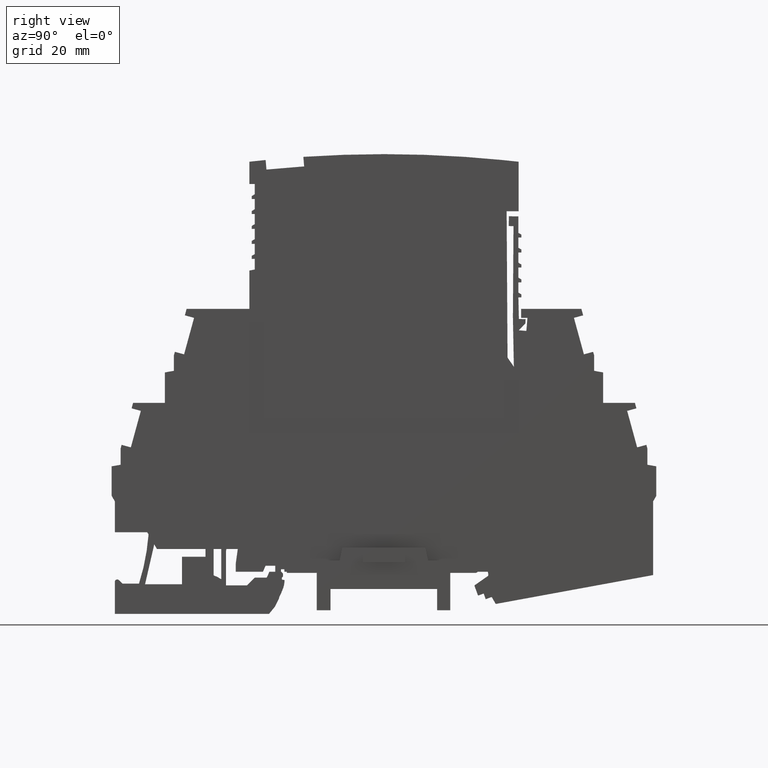
[diagram: clean part render]
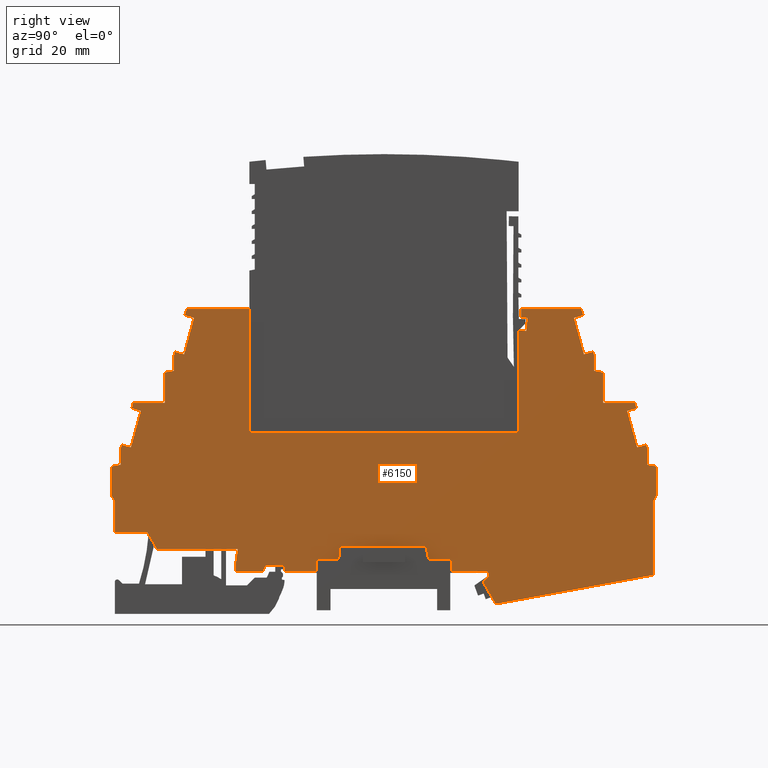
[diagram: same view with one face highlighted and labeled with its STEP entity id]
A machine part, right view. The second image highlights one B-rep face of the part: STEP entity #6150.
In plain terms, the highlighted planar face has unit normal (-1, 0, -0).
Its self-contained STEP definition (entity closure, byte-faithful):
#480=CARTESIAN_POINT('',(163.675787424711,45.2748719518251,
-0.938341446413222));
#490=DIRECTION('',(1.31820478495376E-13,-4.39608926050624E-11,-1.));
#500=DIRECTION('',(1.,5.77082812486863E-24,1.31820478495376E-13));
#510=AXIS2_PLACEMENT_3D('',#480,#490,#500);
#520=PLANE('',#510);
#530=CARTESIAN_POINT('',(140.653020451251,47.3424286058978,
-0.938341446507151));
#540=DIRECTION('',(-2.90082999581505E-26,-1.,4.39608926050624E-11));
#550=VECTOR('',#540,1.);
#560=LINE('',#530,#550);
#570=CARTESIAN_POINT('',(140.653020451246,68.302477057904,
-0.938341447428572));
#580=VERTEX_POINT('',#570);
#590=CARTESIAN_POINT('',(140.653020451246,51.1748719518589,
-0.938341446675626));
#600=VERTEX_POINT('',#590);
#610=EDGE_CURVE('',#580,#600,#560,.T.);
#620=ORIENTED_EDGE('',*,*,#610,.T.);
#630=CARTESIAN_POINT('',(150.854165360675,67.4655827229434,
-0.938341447390435));
#640=DIRECTION('',(0.996651672605884,-0.0817645613447162,
3.72582820561022E-12));
#650=VECTOR('',#640,1.);
#660=LINE('',#630,#650);
#670=CARTESIAN_POINT('',(141.954397861838,68.1957130238435,
-0.938341447423708));
#680=VERTEX_POINT('',#670);
#690=EDGE_CURVE('',#580,#680,#660,.T.);
#700=ORIENTED_EDGE('',*,*,#690,.F.);
#710=CARTESIAN_POINT('',(139.972880387126,44.0424286058733,
-0.938341443299544));
#720=DIRECTION('',(0.0817645613447245,0.996651672605883,
-4.70011343753861E-11));
#730=VECTOR('',#720,1.);
#740=LINE('',#710,#730);
#750=CARTESIAN_POINT('',(142.134058703453,70.3856505145184,
-0.938341447519955));
#760=VERTEX_POINT('',#750);
#770=EDGE_CURVE('',#680,#760,#740,.T.);
#780=ORIENTED_EDGE('',*,*,#770,.F.);
#790=CARTESIAN_POINT('',(150.854165360675,70.3856505145184,
-0.938341447518805));
#800=DIRECTION('',(-1.,-2.48441503814189E-16,-1.3182047849537E-13));
#810=VECTOR('',#800,1.);
#820=LINE('',#790,#810);
#830=CARTESIAN_POINT('',(141.074778119476,70.3856505145184,
-0.938341447520092));
#840=VERTEX_POINT('',#830);
#850=EDGE_CURVE('',#760,#840,#820,.T.);
#860=ORIENTED_EDGE('',*,*,#850,.F.);
#870=CARTESIAN_POINT('',(141.074778119476,44.0424286058733,
-0.938341443347982));
#880=DIRECTION('',(1.79793434665674E-23,1.,-4.35524965984235E-11));
#890=VECTOR('',#880,1.);
#900=LINE('',#870,#890);
#910=CARTESIAN_POINT('',(141.074778119476,71.8738971800403,
-0.938341447585517));
#920=VERTEX_POINT('',#910);
#930=EDGE_CURVE('',#840,#920,#900,.T.);
#940=ORIENTED_EDGE('',*,*,#930,.F.);
#950=CARTESIAN_POINT('',(150.854165360675,71.8738971800403,
-0.93834144758423));
#960=DIRECTION('',(1.,4.27677063874898E-23,1.31820478495383E-13));
#970=VECTOR('',#960,1.);
#980=LINE('',#950,#970);
#990=CARTESIAN_POINT('',(151.153287379428,71.8738971800403,
-0.93834144758419));
#1000=VERTEX_POINT('',#990);
#1010=EDGE_CURVE('',#920,#1000,#980,.T.);
#1020=ORIENTED_EDGE('',*,*,#1010,.F.);
#1030=CARTESIAN_POINT('',(158.767115604835,44.0424286058733,
-0.938341446381106));
#1040=DIRECTION('',(-0.263873049965359,0.964557418457802,
-4.22984758669483E-11));
#1050=VECTOR('',#1040,1.);
#1060=LINE('',#1030,#1050);
#1070=CARTESIAN_POINT('',(151.446544502388,70.801929680881,
-0.938341447537027));
#1080=VERTEX_POINT('',#1070);
#1090=EDGE_CURVE('',#1080,#1000,#1060,.T.);
#1100=ORIENTED_EDGE('',*,*,#1090,.T.);
#1110=CARTESIAN_POINT('',(85.4518755928881,52.747831258784,
-0.938341446734807));
#1120=DIRECTION('',(0.964557418457813,0.26387304996532,
-1.19815583951361E-11));
#1130=VECTOR('',#1120,1.);
#1140=LINE('',#1110,#1130);
#1150=CARTESIAN_POINT('',(149.903252632856,70.3797328009367,
-0.938341447518669));
#1160=VERTEX_POINT('',#1150);
#1170=EDGE_CURVE('',#1160,#1080,#1140,.T.);
#1180=ORIENTED_EDGE('',*,*,#1170,.T.);
#1190=CARTESIAN_POINT('',(157.108323738862,44.0424286058733,
-0.938341446380448));
#1200=DIRECTION('',(-0.263873049965258,0.96455741845783,
-4.22984481113694E-11));
#1210=VECTOR('',#1200,1.);
#1220=LINE('',#1190,#1210);
#1230=CARTESIAN_POINT('',(151.572249673886,64.2789071291908,
-0.938341447250252));
#1240=VERTEX_POINT('',#1230);
#1250=EDGE_CURVE('',#1240,#1160,#1220,.T.);
#1260=ORIENTED_EDGE('',*,*,#1250,.T.);
#1270=CARTESIAN_POINT('',(85.4518755928881,46.1904196636059,
-0.938341446446538));
#1280=DIRECTION('',(-0.964557418457773,-0.263873049965463,
1.19815861507196E-11));
#1290=VECTOR('',#1280,1.);
#1300=LINE('',#1270,#1290);
#1310=CARTESIAN_POINT('',(153.115541543419,64.7011040091355,
-0.938341447268609));
#1320=VERTEX_POINT('',#1310);
#1330=EDGE_CURVE('',#1320,#1240,#1300,.T.);
#1340=ORIENTED_EDGE('',*,*,#1330,.T.);
#1350=CARTESIAN_POINT('',(158.767115604837,44.0424286058733,
-0.938341446381106));
#1360=DIRECTION('',(0.263873049965441,-0.964557418457779,
4.22984758669509E-11));
#1370=VECTOR('',#1360,1.);
#1380=LINE('',#1350,#1370);
#1390=CARTESIAN_POINT('',(153.275787895218,64.1153420018783,
-0.938341447242838));
#1400=VERTEX_POINT('',#1390);
#1410=EDGE_CURVE('',#1320,#1400,#1380,.T.);
#1420=ORIENTED_EDGE('',*,*,#1410,.F.);
#1430=CARTESIAN_POINT('',(153.275787895218,44.0424286058733,
-0.938341446378933));
#1440=DIRECTION('',(2.57518821413981E-26,1.,-4.39608926050624E-11));
#1450=VECTOR('',#1440,1.);
#1460=LINE('',#1430,#1450);
#1470=CARTESIAN_POINT('',(153.275787895218,61.5248719518296,
-0.938341447128959));
#1480=VERTEX_POINT('',#1470);
#1490=EDGE_CURVE('',#1480,#1400,#1460,.T.);
#1500=ORIENTED_EDGE('',*,*,#1490,.T.);
#1510=CARTESIAN_POINT('',(76.5518755928633,75.053367756245,
-0.938341447714206));
#1520=DIRECTION('',(0.984807753012208,-0.173648177666932,
7.24429425231026E-12));
#1530=VECTOR('',#1520,1.);
#1540=LINE('',#1510,#1530);
#1550=CARTESIAN_POINT('',(154.775787895097,61.2603814807883,
-0.938341447117132));
#1560=VERTEX_POINT('',#1550);
#1570=EDGE_CURVE('',#1480,#1560,#1540,.T.);
#1580=ORIENTED_EDGE('',*,*,#1570,.F.);
#1590=CARTESIAN_POINT('',(154.775787895097,59.7424286058654,
-0.938341447072059));
#1600=DIRECTION('',(-1.20204594567042E-15,-1.,4.39608926050624E-11));
#1610=VECTOR('',#1600,1.);
#1620=LINE('',#1590,#1610);
#1630=CARTESIAN_POINT('',(154.775787895097,56.1748719518101,
-0.938341446893569));
#1640=VERTEX_POINT('',#1630);
#1650=EDGE_CURVE('',#1560,#1640,#1620,.T.);
#1660=ORIENTED_EDGE('',*,*,#1650,.F.);
#1670=CARTESIAN_POINT('',(85.4518755928881,56.1748719518101,
-0.938341446885461));
#1680=DIRECTION('',(-1.,1.74088887097105E-23,3.95461443333262E-13));
#1690=VECTOR('',#1680,1.);
#1700=LINE('',#1670,#1690);
#1710=CARTESIAN_POINT('',(160.09405606851,56.1748719518101,
-0.938341446892869));
#1720=VERTEX_POINT('',#1710);
#1730=EDGE_CURVE('',#1720,#1640,#1700,.T.);
#1740=ORIENTED_EDGE('',*,*,#1730,.T.);
#1750=CARTESIAN_POINT('',(163.413116984907,44.0424286058733,
-0.938341446382942));
#1760=DIRECTION('',(0.26387304996536,-0.964557418457802,
4.22984758669483E-11));
#1770=VECTOR('',#1760,1.);
#1780=LINE('',#1750,#1770);
#1790=CARTESIAN_POINT('',(160.346544502388,55.251929680881,
-0.93834144685226));
#1800=VERTEX_POINT('',#1790);
#1810=EDGE_CURVE('',#1720,#1800,#1780,.T.);
#1820=ORIENTED_EDGE('',*,*,#1810,.F.);
#1830=CARTESIAN_POINT('',(85.4518755928881,34.7630667753526,
-0.938341445944179));
#1840=DIRECTION('',(-0.964557418457813,-0.26387304996532,
1.19815583951361E-11));
#1850=VECTOR('',#1840,1.);
#1860=LINE('',#1830,#1850);
#1870=CARTESIAN_POINT('',(158.803252632856,54.8297328009367,
-0.938341446833903));
#1880=VERTEX_POINT('',#1870);
#1890=EDGE_CURVE('',#1800,#1880,#1860,.T.);
#1900=ORIENTED_EDGE('',*,*,#1890,.F.);
#1910=CARTESIAN_POINT('',(161.754325118935,44.0424286058733,
-0.938341446382285));
#1920=DIRECTION('',(0.263873049965258,-0.96455741845783,
4.22984481113694E-11));
#1930=VECTOR('',#1920,1.);
#1940=LINE('',#1910,#1930);
#1950=CARTESIAN_POINT('',(160.472249673886,48.7289071291908,
-0.938341446565488));
#1960=VERTEX_POINT('',#1950);
#1970=EDGE_CURVE('',#1880,#1960,#1940,.T.);
#1980=ORIENTED_EDGE('',*,*,#1970,.F.);
#1990=CARTESIAN_POINT('',(85.4518755928881,28.2056551801731,
-0.938341445655912));
#2000=DIRECTION('',(0.964557418457773,0.263873049965463,
-1.19815861507196E-11));
#2010=VECTOR('',#2000,1.);
#2020=LINE('',#1990,#2010);
#2030=CARTESIAN_POINT('',(162.015541543419,49.1511040091355,
-0.938341446583841));
#2040=VERTEX_POINT('',#2030);
#2050=EDGE_CURVE('',#1960,#2040,#2020,.T.);
#2060=ORIENTED_EDGE('',*,*,#2050,.F.);
#2070=CARTESIAN_POINT('',(163.413116984907,44.0424286058733,
-0.938341446382942));
#2080=DIRECTION('',(0.263873049965441,-0.964557418457779,
4.22984758669509E-11));
#2090=VECTOR('',#2080,1.);
#2100=LINE('',#2070,#2090);
#2110=CARTESIAN_POINT('',(162.175787895218,48.5653420018782,
-0.938341446558072));
#2120=VERTEX_POINT('',#2110);
#2130=EDGE_CURVE('',#2040,#2120,#2100,.T.);
#2140=ORIENTED_EDGE('',*,*,#2130,.F.);
#2150=CARTESIAN_POINT('',(162.175787895218,44.0424286058733,
-0.938341446382452));
#2160=DIRECTION('',(2.57518821413981E-26,1.,-4.39608926050624E-11));
#2170=VECTOR('',#2160,1.);
#2180=LINE('',#2150,#2170);
#2190=CARTESIAN_POINT('',(162.175787895218,45.824871951849,
-0.938341446437599));
#2200=VERTEX_POINT('',#2190);
#2210=EDGE_CURVE('',#2200,#2120,#2180,.T.);
#2220=ORIENTED_EDGE('',*,*,#2210,.T.);
#2230=CARTESIAN_POINT('',(85.4518755928881,59.35336775626,
-0.938341447025193));
#2240=DIRECTION('',(0.984807753012208,-0.173648177666932,
7.24429425231026E-12));
#2250=VECTOR('',#2240,1.);
#2260=LINE('',#2230,#2250);
#2270=CARTESIAN_POINT('',(163.675787895122,45.5603814808033,
-0.938341446425774));
#2280=VERTEX_POINT('',#2270);
#2290=EDGE_CURVE('',#2200,#2280,#2260,.T.);
#2300=ORIENTED_EDGE('',*,*,#2290,.F.);
#2310=CARTESIAN_POINT('',(163.675787895122,44.0424286058805,
-0.938341446383046));
#2320=DIRECTION('',(-1.20204594567042E-15,-1.,4.39608926050624E-11));
#2330=VECTOR('',#2320,1.);
#2340=LINE('',#2310,#2330);
#2350=CARTESIAN_POINT('',(163.675787895122,40.6248719518588,
-0.938341446208804));
#2360=VERTEX_POINT('',#2350);
#2370=EDGE_CURVE('',#2280,#2360,#2340,.T.);
#2380=ORIENTED_EDGE('',*,*,#2370,.F.);
#2390=CARTESIAN_POINT('',(165.648915149292,44.0424286058805,
-0.938341446383831));
#2400=DIRECTION('',(-0.500000000000001,-0.866025403784438,
3.82689273077534E-11));
#2410=VECTOR('',#2400,1.);
#2420=LINE('',#2390,#2410);
#2430=CARTESIAN_POINT('',(163.153020204201,39.7194125656179,
-0.938341446169069));
#2440=VERTEX_POINT('',#2430);
#2450=EDGE_CURVE('',#2360,#2440,#2420,.T.);
#2460=ORIENTED_EDGE('',*,*,#2450,.F.);
#2470=CARTESIAN_POINT('',(163.153020204201,44.0424286058733,
-0.938341446359114));
#2480=DIRECTION('',(-2.58023692393323E-26,-1.,4.39608926050624E-11));
#2490=VECTOR('',#2480,1.);
#2500=LINE('',#2470,#2490);
#2510=CARTESIAN_POINT('',(163.153020204201,27.3820053737875,
-0.938341445626705));
#2520=VERTEX_POINT('',#2510);
#2530=EDGE_CURVE('',#2440,#2520,#2500,.T.);
#2540=ORIENTED_EDGE('',*,*,#2530,.F.);
#2550=CARTESIAN_POINT('',(150.854165360675,25.1247431109057,
-0.938341445529096));
#2560=DIRECTION('',(-0.983571470813386,-0.18051914525056,
7.80614456234508E-12));
#2570=VECTOR('',#2560,1.);
#2580=LINE('',#2550,#2570);
#2590=CARTESIAN_POINT('',(136.83368340126,22.5515031436857,
-0.938341445417819));
#2600=VERTEX_POINT('',#2590);
#2610=EDGE_CURVE('',#2520,#2600,#2580,.T.);
#2620=ORIENTED_EDGE('',*,*,#2610,.F.);
#2630=CARTESIAN_POINT('',(124.320669813202,44.0424286058733,
-0.938341446364232));
#2640=DIRECTION('',(-0.503170012398067,0.86418744414816,
-3.80568264323575E-11));
#2650=VECTOR('',#2640,1.);
#2660=LINE('',#2630,#2650);
#2670=CARTESIAN_POINT('',(134.874971798065,25.9155628699821,
-0.938341445565966));
#2680=VERTEX_POINT('',#2670);
#2690=EDGE_CURVE('',#2600,#2680,#2660,.T.);
#2700=ORIENTED_EDGE('',*,*,#2690,.F.);
#2710=CARTESIAN_POINT('',(134.602807128728,64.8996467259534,
-0.938341443971854));
#2720=DIRECTION('',(-0.00698126029796187,0.999975630705395,
-4.3244530882907E-11));
#2730=VECTOR('',#2720,1.);
#2740=LINE('',#2710,#2730);
#2750=CARTESIAN_POINT('',(134.871438850106,26.4216121666662,
-0.938341445588209));
#2760=VERTEX_POINT('',#2750);
#2770=EDGE_CURVE('',#2680,#2760,#2740,.T.);
#2780=ORIENTED_EDGE('',*,*,#2770,.F.);
#2790=CARTESIAN_POINT('',(150.854165360675,37.6128377505119,
-0.938341446078084));
#2800=DIRECTION('',(0.819152044288959,0.573576436351093,
-2.51069951089547E-11));
#2810=VECTOR('',#2800,1.);
#2820=LINE('',#2790,#2810);
#2830=CARTESIAN_POINT('',(135.626055204502,26.9500002264709,
-0.938341445611339));
#2840=VERTEX_POINT('',#2830);
#2850=EDGE_CURVE('',#2760,#2840,#2820,.T.);
#2860=ORIENTED_EDGE('',*,*,#2850,.F.);
#2870=CARTESIAN_POINT('',(135.626055204502,44.0424286058733,
-0.938341443108452));
#2880=DIRECTION('',(-1.24900108249674E-16,-1.,4.35524965984235E-11));
#2890=VECTOR('',#2880,1.);
#2900=LINE('',#2870,#2890);
#2910=CARTESIAN_POINT('',(135.626055204502,27.9453465791736,
-0.938341445655098));
#2920=VERTEX_POINT('',#2910);
#2930=EDGE_CURVE('',#2920,#2840,#2900,.T.);
#2940=ORIENTED_EDGE('',*,*,#2930,.T.);
#2950=CARTESIAN_POINT('',(150.854165360675,27.9453465791736,
-0.938341445653091));
#2960=DIRECTION('',(-1.,1.22365731730191E-23,-1.31820478495376E-13));
#2970=VECTOR('',#2960,1.);
#2980=LINE('',#2950,#2970);
#2990=CARTESIAN_POINT('',(129.403020257824,27.9453465791736,
-0.93834144565592));
#3000=VERTEX_POINT('',#2990);
#3010=EDGE_CURVE('',#2920,#3000,#2980,.T.);
#3020=ORIENTED_EDGE('',*,*,#3010,.F.);
#3030=CARTESIAN_POINT('',(129.403020257824,44.0424286058733,
-0.938341446363562));
#3040=DIRECTION('',(1.80331618071556E-23,1.,-4.39608926050624E-11));
#3050=VECTOR('',#3040,1.);
#3060=LINE('',#3030,#3050);
#3070=CARTESIAN_POINT('',(129.403020257824,30.045346579171,
-0.938341445748238));
#3080=VERTEX_POINT('',#3070);
#3090=EDGE_CURVE('',#3000,#3080,#3060,.T.);
#3100=ORIENTED_EDGE('',*,*,#3090,.F.);
#3110=CARTESIAN_POINT('',(150.854165360675,30.045346579171,
-0.938341445745412));
#3120=DIRECTION('',(-1.,3.01922085791014E-23,-1.31820478495383E-13));
#3130=VECTOR('',#3120,1.);
#3140=LINE('',#3110,#3130);
#3150=CARTESIAN_POINT('',(125.609530541906,30.045346579171,
-0.938341445748737));
#3160=VERTEX_POINT('',#3150);
#3170=EDGE_CURVE('',#3080,#3160,#3140,.T.);
#3180=ORIENTED_EDGE('',*,*,#3170,.F.);
#3190=CARTESIAN_POINT('',(122.698133293384,44.0424286058733,
-0.938341446364447));
#3200=DIRECTION('',(-0.203641751140178,0.979045472484584,
-4.30665563927209E-11));
#3210=VECTOR('',#3200,1.);
#3220=LINE('',#3190,#3210);
#3230=CARTESIAN_POINT('',(125.161361986713,32.1999999958462,
-0.938341445843516));
#3240=VERTEX_POINT('',#3230);
#3250=EDGE_CURVE('',#3160,#3240,#3220,.T.);
#3260=ORIENTED_EDGE('',*,*,#3250,.F.);
#3270=CARTESIAN_POINT('',(150.854165360675,32.1999999958462,
-0.93834144584013));
#3280=DIRECTION('',(-1.,-5.71906223306398E-24,-1.31820478495383E-13));
#3290=VECTOR('',#3280,1.);
#3300=LINE('',#3270,#3290);
#3310=CARTESIAN_POINT('',(110.737919122649,32.1999999958462,
-0.938341445845417));
#3320=VERTEX_POINT('',#3310);
#3330=EDGE_CURVE('',#3240,#3320,#3300,.T.);
#3340=ORIENTED_EDGE('',*,*,#3330,.F.);
#3350=CARTESIAN_POINT('',(111.566022401018,44.0424286058733,
-0.938341446365914));
#3360=DIRECTION('',(-0.0697564737442381,-0.997564050259816,
4.38446155892084E-11));
#3370=VECTOR('',#3360,1.);
#3380=LINE('',#3350,#3370);
#3390=CARTESIAN_POINT('',(110.587251078378,30.045346579171,
-0.938341445750716));
#3400=VERTEX_POINT('',#3390);
#3410=EDGE_CURVE('',#3320,#3400,#3380,.T.);
#3420=ORIENTED_EDGE('',*,*,#3410,.F.);
#3430=CARTESIAN_POINT('',(150.854165360675,30.045346579171,
-0.938341445745412));
#3440=DIRECTION('',(-1.,3.01922085791014E-23,-1.31820478495383E-13));
#3450=VECTOR('',#3440,1.);
#3460=LINE('',#3430,#3450);
#3470=CARTESIAN_POINT('',(106.903020241732,30.045346579171,
-0.938341445751202));
#3480=VERTEX_POINT('',#3470);
#3490=EDGE_CURVE('',#3400,#3480,#3460,.T.);
#3500=ORIENTED_EDGE('',*,*,#3490,.F.);
#3510=CARTESIAN_POINT('',(106.903020241732,44.0424286058733,
-0.938341446366529));
#3520=DIRECTION('',(-1.80331618071556E-23,-1.,4.39608926050624E-11));
#3530=VECTOR('',#3520,1.);
#3540=LINE('',#3510,#3530);
#3550=CARTESIAN_POINT('',(106.903020241732,27.9453465791647,
-0.938341445658885));
#3560=VERTEX_POINT('',#3550);
#3570=EDGE_CURVE('',#3480,#3560,#3540,.T.);
#3580=ORIENTED_EDGE('',*,*,#3570,.F.);
#3590=CARTESIAN_POINT('',(150.854165360675,27.9453465791733,
-0.938341445653091));
#3600=DIRECTION('',(1.,5.71583105879582E-24,1.31820478495376E-13));
#3610=VECTOR('',#3600,1.);
#3620=LINE('',#3590,#3610);
#3630=CARTESIAN_POINT('',(101.506785998505,27.9453465791647,
-0.938341445659598));
#3640=VERTEX_POINT('',#3630);
#3650=EDGE_CURVE('',#3640,#3560,#3620,.T.);
#3660=ORIENTED_EDGE('',*,*,#3650,.T.);
#3670=CARTESIAN_POINT('',(101.506785998505,64.8996467259534,
-0.938341442516913));
#3680=DIRECTION('',(2.5777126526941E-26,1.,-4.35524965984235E-11));
#3690=VECTOR('',#3680,1.);
#3700=LINE('',#3670,#3690);
#3710=CARTESIAN_POINT('',(101.506785998505,28.9453465791685,
-0.938341445703557));
#3720=VERTEX_POINT('',#3710);
#3730=EDGE_CURVE('',#3640,#3720,#3700,.T.);
#3740=ORIENTED_EDGE('',*,*,#3730,.F.);
#3750=CARTESIAN_POINT('',(150.854165360675,28.9453465791685,
-0.938341445697054));
#3760=DIRECTION('',(-1.,3.0188977404834E-23,-1.31820478495376E-13));
#3770=VECTOR('',#3760,1.);
#3780=LINE('',#3750,#3770);
#3790=CARTESIAN_POINT('',(98.3662494078751,28.9453465791685,
-0.938341445703971));
#3800=VERTEX_POINT('',#3790);
#3810=EDGE_CURVE('',#3720,#3800,#3780,.T.);
#3820=ORIENTED_EDGE('',*,*,#3810,.F.);
#3830=CARTESIAN_POINT('',(105.334133420227,44.0424286058733,
-0.938341446366737));
#3840=DIRECTION('',(-0.41905817746306,-0.907959384499846,
3.98594752763602E-11));
#3850=VECTOR('',#3840,1.);
#3860=LINE('',#3830,#3850);
#3870=CARTESIAN_POINT('',(97.9047109463361,27.945346579171,
-0.938341445660072));
#3880=VERTEX_POINT('',#3870);
#3890=EDGE_CURVE('',#3800,#3880,#3860,.T.);
#3900=ORIENTED_EDGE('',*,*,#3890,.F.);
#3910=CARTESIAN_POINT('',(150.854165360675,27.945346579171,
-0.938341445653091));
#3920=DIRECTION('',(-1.,5.55111814202352E-17,-1.31820478495376E-13));
#3930=VECTOR('',#3920,1.);
#3940=LINE('',#3910,#3930);
#3950=CARTESIAN_POINT('',(93.3760552046451,27.945346579171,
-0.938341445660669));
#3960=VERTEX_POINT('',#3950);
#3970=EDGE_CURVE('',#3880,#3960,#3940,.T.);
#3980=ORIENTED_EDGE('',*,*,#3970,.F.);
#3990=CARTESIAN_POINT('',(93.3760552047463,64.8996467259534,
-0.938341442159478));
#4000=DIRECTION('',(1.24900090296107E-16,1.,-4.35524965984235E-11));
#4010=VECTOR('',#4000,1.);
#4020=LINE('',#3990,#4010);
#4030=CARTESIAN_POINT('',(93.3760552053136,29.3500002256824,
-0.938341445722417));
#4040=VERTEX_POINT('',#4030);
#4050=EDGE_CURVE('',#3960,#4040,#4020,.T.);
#4060=ORIENTED_EDGE('',*,*,#4050,.F.);
#4070=CARTESIAN_POINT('',(95.4409413528916,44.0424286058733,
-0.938341446368041));
#4080=DIRECTION('',(-0.139173100960066,-0.99026806874157,
4.35147359590145E-11));
#4090=VECTOR('',#4080,1.);
#4100=LINE('',#4070,#4090);
#4110=CARTESIAN_POINT('',(93.7133532411231,31.7500004571015,
-0.938341445827877));
#4120=VERTEX_POINT('',#4110);
#4130=EDGE_CURVE('',#4120,#4040,#4100,.T.);
#4140=ORIENTED_EDGE('',*,*,#4130,.T.);
#4150=CARTESIAN_POINT('',(150.854165360675,31.7500004571145,
-0.938341445820349));
#4160=DIRECTION('',(-1.,-2.56108359937148E-13,-1.31820478484119E-13));
#4170=VECTOR('',#4160,1.);
#4180=LINE('',#4150,#4170);
#4190=CARTESIAN_POINT('',(80.1863591562898,31.7500004570981,
-0.938341445829662));
#4200=VERTEX_POINT('',#4190);
#4210=EDGE_CURVE('',#4120,#4200,#4180,.T.);
#4220=ORIENTED_EDGE('',*,*,#4210,.F.);
#4230=CARTESIAN_POINT('',(73.0893224556003,44.0424286058733,
-0.938341446370986));
#4240=DIRECTION('',(-0.5,0.866025403784439,-3.81371761837738E-11));
#4250=VECTOR('',#4240,1.);
#4260=LINE('',#4230,#4250);
#4270=CARTESIAN_POINT('',(78.5724653202351,34.545346579167,
-0.93834144595276));
#4280=VERTEX_POINT('',#4270);
#4290=EDGE_CURVE('',#4200,#4280,#4260,.T.);
#4300=ORIENTED_EDGE('',*,*,#4290,.F.);
#4310=CARTESIAN_POINT('',(150.854165360675,34.5453465791855,
-0.938341445943232));
#4320=DIRECTION('',(-1.,-2.5615826440919E-13,-1.31820478484113E-13));
#4330=VECTOR('',#4320,1.);
#4340=LINE('',#4310,#4330);
#4350=CARTESIAN_POINT('',(73.1530202788275,34.5453465791656,
-0.938341445953474));
#4360=VERTEX_POINT('',#4350);
#4370=EDGE_CURVE('',#4280,#4360,#4340,.T.);
#4380=ORIENTED_EDGE('',*,*,#4370,.F.);
#4390=CARTESIAN_POINT('',(73.1530202788275,44.0424286058733,
-0.938341446370977));
#4400=DIRECTION('',(-2.57771256903652E-26,-1.,4.39608926050624E-11));
#4410=VECTOR('',#4400,1.);
#4420=LINE('',#4390,#4410);
#4430=CARTESIAN_POINT('',(73.1530202788275,39.7194125656179,
-0.938341446180932));
#4440=VERTEX_POINT('',#4430);
#4450=EDGE_CURVE('',#4440,#4360,#4420,.T.);
#4460=ORIENTED_EDGE('',*,*,#4450,.T.);
#4470=CARTESIAN_POINT('',(70.6571258042708,44.0424286058805,
-0.938341446371311));
#4480=DIRECTION('',(0.500000000000001,-0.866025403784438,
3.81371068253344E-11));
#4490=VECTOR('',#4480,1.);
#4500=LINE('',#4470,#4490);
#4510=CARTESIAN_POINT('',(72.630253058441,40.6248719518588,
-0.938341446220807));
#4520=VERTEX_POINT('',#4510);
#4530=EDGE_CURVE('',#4520,#4440,#4500,.T.);
#4540=ORIENTED_EDGE('',*,*,#4530,.T.);
#4550=CARTESIAN_POINT('',(72.6302530584411,44.0424286058805,
-0.938341446371046));
#4560=DIRECTION('',(1.20204594561886E-15,-1.,4.39608926050624E-11));
#4570=VECTOR('',#4560,1.);
#4580=LINE('',#4550,#4570);
#4590=CARTESIAN_POINT('',(72.6302530584411,45.5603814808033,
-0.938341446437777));
#4600=VERTEX_POINT('',#4590);
#4610=EDGE_CURVE('',#4600,#4520,#4580,.T.);
#4620=ORIENTED_EDGE('',*,*,#4610,.T.);
#4630=CARTESIAN_POINT('',(150.854165360675,59.35336775626,
-0.938341447033817));
#4640=DIRECTION('',(-0.984807753012208,-0.173648177666932,
7.50392991849422E-12));
#4650=VECTOR('',#4640,1.);
#4660=LINE('',#4630,#4650);
#4670=CARTESIAN_POINT('',(74.1302530583447,45.824871951849,
-0.938341446449204));
#4680=VERTEX_POINT('',#4670);
#4690=EDGE_CURVE('',#4680,#4600,#4660,.T.);
#4700=ORIENTED_EDGE('',*,*,#4690,.T.);
#4710=CARTESIAN_POINT('',(74.1302530583448,44.0424286058733,
-0.938341446370849));
#4720=DIRECTION('',(2.58023692393323E-26,1.,-4.39608926050624E-11));
#4730=VECTOR('',#4720,1.);
#4740=LINE('',#4710,#4730);
#4750=CARTESIAN_POINT('',(74.1302530583447,48.5653420018782,
-0.93834144656968));
#4760=VERTEX_POINT('',#4750);
#4770=EDGE_CURVE('',#4680,#4760,#4740,.T.);
#4780=ORIENTED_EDGE('',*,*,#4770,.F.);
#4790=CARTESIAN_POINT('',(72.8929239686555,44.0424286058733,
-0.938341446371012));
#4800=DIRECTION('',(-0.263873049965441,-0.964557418457779,
4.23680436124385E-11));
#4810=VECTOR('',#4800,1.);
#4820=LINE('',#4790,#4810);
#4830=CARTESIAN_POINT('',(74.2904994101441,49.1511040091355,
-0.938341446595407));
#4840=VERTEX_POINT('',#4830);
#4850=EDGE_CURVE('',#4840,#4760,#4820,.T.);
#4860=ORIENTED_EDGE('',*,*,#4850,.T.);
#4870=CARTESIAN_POINT('',(150.854165360675,28.2056551801731,
-0.938341445664536));
#4880=DIRECTION('',(-0.964557418457773,0.263873049965463,
-1.17272893022759E-11));
#4890=VECTOR('',#4880,1.);
#4900=LINE('',#4870,#4890);
#4910=CARTESIAN_POINT('',(75.8337912796762,48.7289071291908,
-0.938341446576645));
#4920=VERTEX_POINT('',#4910);
#4930=EDGE_CURVE('',#4920,#4840,#4900,.T.);
#4940=ORIENTED_EDGE('',*,*,#4930,.T.);
#4950=CARTESIAN_POINT('',(74.5517158346274,44.0424286058733,
-0.938341446370792));
#4960=DIRECTION('',(-0.263873049965258,-0.96455741845783,
4.2368015856857E-11));
#4970=VECTOR('',#4960,1.);
#4980=LINE('',#4950,#4970);
#4990=CARTESIAN_POINT('',(77.5027883207071,54.8297328009366,
-0.938341446844625));
#5000=VERTEX_POINT('',#4990);
#5010=EDGE_CURVE('',#5000,#4920,#4980,.T.);
#5020=ORIENTED_EDGE('',*,*,#5010,.T.);
#5030=CARTESIAN_POINT('',(150.854165360675,34.7630667753526,
-0.938341445952803));
#5040=DIRECTION('',(0.964557418457813,-0.26387304996532,
1.17272615466923E-11));
#5050=VECTOR('',#5040,1.);
#5060=LINE('',#5030,#5050);
#5070=CARTESIAN_POINT('',(75.9594964511748,55.251929680881,
-0.938341446863388));
#5080=VERTEX_POINT('',#5070);
#5090=EDGE_CURVE('',#5080,#5000,#5060,.T.);
#5100=ORIENTED_EDGE('',*,*,#5090,.T.);
#5110=CARTESIAN_POINT('',(72.8929239686559,44.0424286058733,
-0.938341446371012));
#5120=DIRECTION('',(-0.26387304996536,-0.964557418457802,
4.23680436124358E-11));
#5130=VECTOR('',#5120,1.);
#5140=LINE('',#5110,#5130);
#5150=CARTESIAN_POINT('',(76.2119848850531,56.1748719518101,
-0.938341446903927));
#5160=VERTEX_POINT('',#5150);
#5170=EDGE_CURVE('',#5160,#5080,#5140,.T.);
#5180=ORIENTED_EDGE('',*,*,#5170,.T.);
#5190=CARTESIAN_POINT('',(150.854165360675,56.1748719518101,
-0.938341446894086));
#5200=DIRECTION('',(1.,5.77076102134855E-24,1.31820478495383E-13));
#5210=VECTOR('',#5200,1.);
#5220=LINE('',#5190,#5210);
#5230=CARTESIAN_POINT('',(81.5302530584659,56.1748719518101,
-0.938341446903223));
#5240=VERTEX_POINT('',#5230);
#5250=EDGE_CURVE('',#5160,#5240,#5220,.T.);
#5260=ORIENTED_EDGE('',*,*,#5250,.F.);
#5270=CARTESIAN_POINT('',(81.5302530584658,59.7424286058654,
-0.938341447062406));
#5280=DIRECTION('',(1.20204594561886E-15,-1.,4.39608926050624E-11));
#5290=VECTOR('',#5280,1.);
#5300=LINE('',#5270,#5290);
#5310=CARTESIAN_POINT('',(81.5302530584658,61.2603814807883,
-0.938341447126787));
#5320=VERTEX_POINT('',#5310);
#5330=EDGE_CURVE('',#5320,#5240,#5300,.T.);
#5340=ORIENTED_EDGE('',*,*,#5330,.T.);
#5350=CARTESIAN_POINT('',(159.754165360699,75.053367756245,
-0.938341447725179));
#5360=DIRECTION('',(-0.984807753012208,-0.173648177666932,
7.50392991849422E-12));
#5370=VECTOR('',#5360,1.);
#5380=LINE('',#5350,#5370);
#5390=CARTESIAN_POINT('',(83.0302530583448,61.5248719518296,
-0.938341447138216));
#5400=VERTEX_POINT('',#5390);
#5410=EDGE_CURVE('',#5400,#5320,#5380,.T.);
#5420=ORIENTED_EDGE('',*,*,#5410,.T.);
#5430=CARTESIAN_POINT('',(83.0302530583448,44.0424286058733,
-0.938341446369677));
#5440=DIRECTION('',(2.58023692393323E-26,1.,-4.39608926050624E-11));
#5450=VECTOR('',#5440,1.);
#5460=LINE('',#5430,#5450);
#5470=CARTESIAN_POINT('',(83.0302530583448,64.1153420018783,
-0.938341447252098));
#5480=VERTEX_POINT('',#5470);
#5490=EDGE_CURVE('',#5400,#5480,#5460,.T.);
#5500=ORIENTED_EDGE('',*,*,#5490,.F.);
#5510=CARTESIAN_POINT('',(77.5389253487256,44.0424286058733,
-0.938341446370401));
#5520=DIRECTION('',(-0.263873049965441,-0.964557418457779,
4.23680436124385E-11));
#5530=VECTOR('',#5520,1.);
#5540=LINE('',#5510,#5530);
#5550=CARTESIAN_POINT('',(83.1904994101441,64.7011040091355,
-0.938341447277828));
#5560=VERTEX_POINT('',#5550);
#5570=EDGE_CURVE('',#5560,#5480,#5540,.T.);
#5580=ORIENTED_EDGE('',*,*,#5570,.T.);
#5590=CARTESIAN_POINT('',(150.854165360675,46.1904196636059,
-0.938341446455162));
#5600=DIRECTION('',(0.964557418457773,-0.263873049965463,
1.17272893022759E-11));
#5610=VECTOR('',#5600,1.);
#5620=LINE('',#5590,#5610);
#5630=CARTESIAN_POINT('',(84.7337912796763,64.2789071291908,
-0.938341447259063));
#5640=VERTEX_POINT('',#5630);
#5650=EDGE_CURVE('',#5560,#5640,#5620,.T.);
#5660=ORIENTED_EDGE('',*,*,#5650,.F.);
#5670=CARTESIAN_POINT('',(79.1977172147006,44.0424286058733,
-0.938341446370181));
#5680=DIRECTION('',(0.263873049965258,0.96455741845783,
-4.2368015856857E-11));
#5690=VECTOR('',#5680,1.);
#5700=LINE('',#5670,#5690);
#5710=CARTESIAN_POINT('',(86.4027883207066,70.3797328009367,
-0.938341447527041));
#5720=VERTEX_POINT('',#5710);
#5730=EDGE_CURVE('',#5640,#5720,#5700,.T.);
#5740=ORIENTED_EDGE('',*,*,#5730,.F.);
#5750=CARTESIAN_POINT('',(150.854165360675,52.747831258784,
-0.938341446743431));
#5760=DIRECTION('',(-0.964557418457813,0.26387304996532,
-1.17272615466923E-11));
#5770=VECTOR('',#5760,1.);
#5780=LINE('',#5750,#5770);
#5790=CARTESIAN_POINT('',(84.8594964511749,70.801929680881,
-0.938341447545803));
#5800=VERTEX_POINT('',#5790);
#5810=EDGE_CURVE('',#5720,#5800,#5780,.T.);
#5820=ORIENTED_EDGE('',*,*,#5810,.F.);
#5830=CARTESIAN_POINT('',(77.5389253487274,44.0424286058733,
-0.938341446370401));
#5840=DIRECTION('',(0.263873049965359,0.964557418457802,
-4.23680436124358E-11));
#5850=VECTOR('',#5840,1.);
#5860=LINE('',#5830,#5850);
#5870=CARTESIAN_POINT('',(85.1527535741352,71.8738971800403,
-0.938341447592888));
#5880=VERTEX_POINT('',#5870);
#5890=EDGE_CURVE('',#5800,#5880,#5860,.T.);
#5900=ORIENTED_EDGE('',*,*,#5890,.F.);
#5910=CARTESIAN_POINT('',(150.854165360675,71.8738971800403,
-0.93834144758423));
#5920=DIRECTION('',(-1.,3.12261843447927E-23,-1.31820478495383E-13));
#5930=VECTOR('',#5920,1.);
#5940=LINE('',#5910,#5930);
#5950=CARTESIAN_POINT('',(95.6530205022995,71.8738971800403,
-0.938341447591505));
#5960=VERTEX_POINT('',#5950);
#5970=EDGE_CURVE('',#5960,#5880,#5940,.T.);
#5980=ORIENTED_EDGE('',*,*,#5970,.T.);
#5990=CARTESIAN_POINT('',(95.6530205022995,47.3424286058978,
-0.938341446513082));
#6000=DIRECTION('',(2.90082999581505E-26,1.,-4.39608926050624E-11));
#6010=VECTOR('',#6000,1.);
#6020=LINE('',#5990,#6010);
#6030=CARTESIAN_POINT('',(95.6530205022995,51.1748719518589,
-0.938341446681559));
#6040=VERTEX_POINT('',#6030);
#6050=EDGE_CURVE('',#6040,#5960,#6020,.T.);
#6060=ORIENTED_EDGE('',*,*,#6050,.T.);
#6070=CARTESIAN_POINT('',(150.854165358034,51.1748719518589,
-0.938341446674286));
#6080=DIRECTION('',(-1.,2.48441510225071E-16,-1.31820478495396E-13));
#6090=VECTOR('',#6080,1.);
#6100=LINE('',#6070,#6090);
#6110=EDGE_CURVE('',#600,#6040,#6100,.T.);
#6120=ORIENTED_EDGE('',*,*,#6110,.T.);
#6130=EDGE_LOOP('',(#6120,#6060,#5980,#5900,#5820,#5740,#5660,#5580,
#5500,#5420,#5340,#5260,#5180,#5100,#5020,#4940,#4860,#4780,#4700,#4620,
#4540,#4460,#4380,#4300,#4220,#4140,#4060,#3980,#3900,#3820,#3740,#3660,
#3580,#3500,#3420,#3340,#3260,#3180,#3100,#3020,#2940,#2860,#2780,#2700,
#2620,#2540,#2460,#2380,#2300,#2220,#2140,#2060,#1980,#1900,#1820,#1740,
#1660,#1580,#1500,#1420,#1340,#1260,#1180,#1100,#1020,#940,#860,#780,
#700,#620));
#6140=FACE_OUTER_BOUND('',#6130,.T.);
#6150=ADVANCED_FACE('',(#6140),#520,.F.);